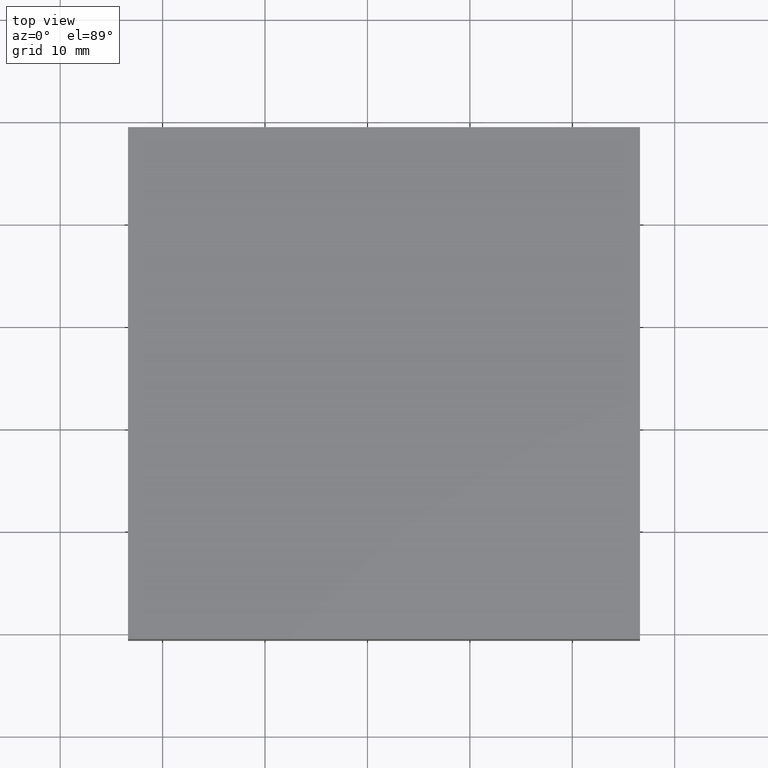
[diagram: clean part render]
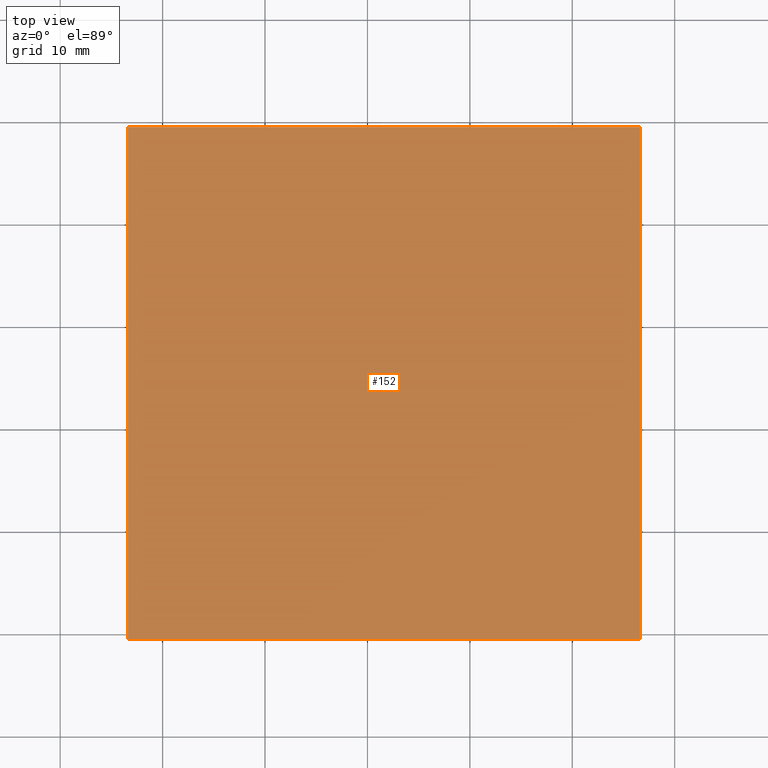
[diagram: same view with one face highlighted and labeled with its STEP entity id]
A machine part, top view. The second image highlights one B-rep face of the part: STEP entity #152.
In plain terms, the highlighted planar face has unit normal (0, 0, -1).
Its self-contained STEP definition (entity closure, byte-faithful):
#1 = VECTOR ( 'NONE', #160, 1000.000000000000000 ) ;
#8 = CARTESIAN_POINT ( 'NONE',  ( 416.6175434576858800, 179.3843025342640100, 10.00000000000000000 ) ) ;
#12 = EDGE_LOOP ( 'NONE', ( #174, #130, #67, #46 ) ) ;
#14 = EDGE_CURVE ( 'NONE', #162, #15, #88, .T. ) ;
#15 = VERTEX_POINT ( 'NONE', #192 ) ;
#19 = DIRECTION ( 'NONE',  ( -0.0000000000000000000, -1.000000000000000000, -0.0000000000000000000 ) ) ;
#21 = AXIS2_PLACEMENT_3D ( 'NONE', #148, #61, #69 ) ;
#22 = CARTESIAN_POINT ( 'NONE',  ( 416.6175434576858800, 129.3843025342640100, 10.00000000000000000 ) ) ;
#31 = LINE ( 'NONE', #8, #98 ) ;
#33 = CARTESIAN_POINT ( 'NONE',  ( 466.6175434576859400, 129.3843025342640100, 10.00000000000000000 ) ) ;
#34 = PLANE ( 'NONE',  #21 ) ;
#46 = ORIENTED_EDGE ( 'NONE', *, *, #145, .T. ) ;
#55 = CARTESIAN_POINT ( 'NONE',  ( 416.6175434576858800, 129.3843025342640100, 10.00000000000000000 ) ) ;
#58 = VECTOR ( 'NONE', #19, 1000.000000000000000 ) ;
#60 = EDGE_CURVE ( 'NONE', #120, #162, #176, .T. ) ;
#61 = DIRECTION ( 'NONE',  ( 0.0000000000000000000, 0.0000000000000000000, -1.000000000000000000 ) ) ;
#66 = LINE ( 'NONE', #73, #119 ) ;
#67 = ORIENTED_EDGE ( 'NONE', *, *, #147, .T. ) ;
#69 = DIRECTION ( 'NONE',  ( -1.000000000000000000, 0.0000000000000000000, -0.0000000000000000000 ) ) ;
#73 = CARTESIAN_POINT ( 'NONE',  ( 466.6175434576859400, 179.3843025342640100, 10.00000000000000000 ) ) ;
#88 = LINE ( 'NONE', #33, #1 ) ;
#98 = VECTOR ( 'NONE', #149, 1000.000000000000000 ) ;
#119 = VECTOR ( 'NONE', #161, 1000.000000000000000 ) ;
#120 = VERTEX_POINT ( 'NONE', #134 ) ;
#130 = ORIENTED_EDGE ( 'NONE', *, *, #14, .T. ) ;
#134 = CARTESIAN_POINT ( 'NONE',  ( 416.6175434576858800, 179.3843025342640100, 10.00000000000000000 ) ) ;
#145 = EDGE_CURVE ( 'NONE', #202, #120, #31, .T. ) ;
#147 = EDGE_CURVE ( 'NONE', #15, #202, #66, .T. ) ;
#148 = CARTESIAN_POINT ( 'NONE',  ( 0.0000000000000000000, 0.0000000000000000000, 10.00000000000000000 ) ) ;
#149 = DIRECTION ( 'NONE',  ( -1.000000000000000000, -0.0000000000000000000, -0.0000000000000000000 ) ) ;
#152 = ADVANCED_FACE ( 'NONE', ( #178 ), #34, .F. ) ;
#160 = DIRECTION ( 'NONE',  ( 1.000000000000000000, -0.0000000000000000000, -0.0000000000000000000 ) ) ;
#161 = DIRECTION ( 'NONE',  ( -0.0000000000000000000, 1.000000000000000000, -0.0000000000000000000 ) ) ;
#162 = VERTEX_POINT ( 'NONE', #55 ) ;
#174 = ORIENTED_EDGE ( 'NONE', *, *, #60, .T. ) ;
#176 = LINE ( 'NONE', #22, #58 ) ;
#178 = FACE_OUTER_BOUND ( 'NONE', #12, .T. ) ;
#192 = CARTESIAN_POINT ( 'NONE',  ( 466.6175434576859400, 129.3843025342640100, 10.00000000000000000 ) ) ;
#200 = CARTESIAN_POINT ( 'NONE',  ( 466.6175434576859400, 179.3843025342640100, 10.00000000000000000 ) ) ;
#202 = VERTEX_POINT ( 'NONE', #200 ) ;